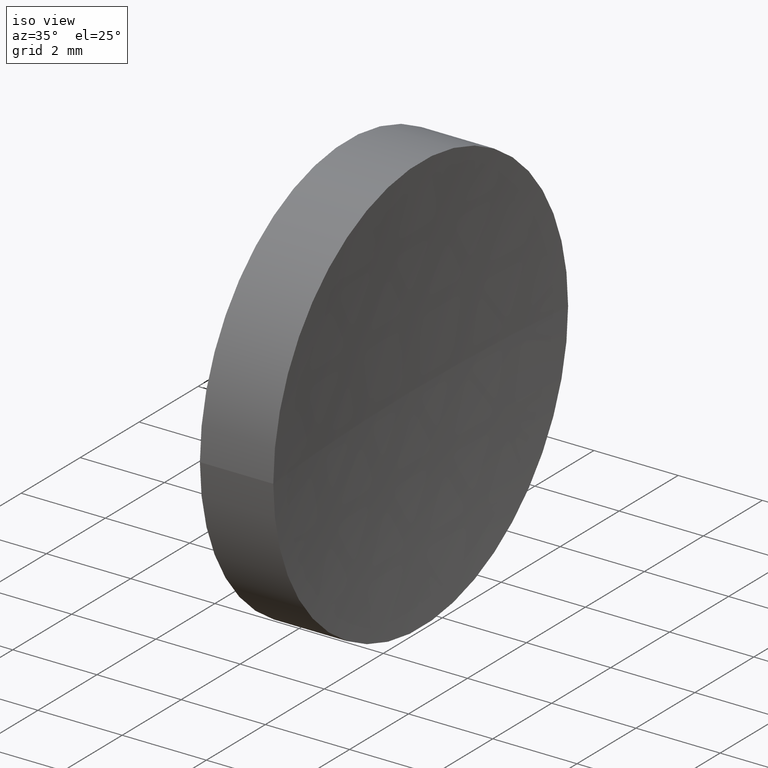
[diagram: clean part render]
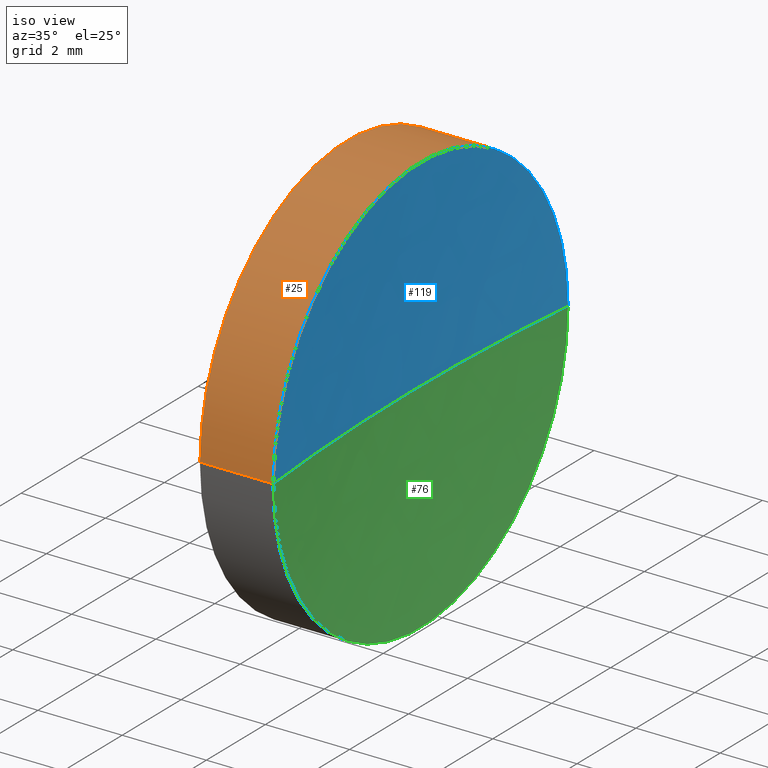
[diagram: same view with three faces highlighted in distinct colors, each labeled with its STEP entity id]
A machine part, iso view with three faces highlighted in distinct colors.
Their STEP definitions:

[orange] entity #25 — the highlighted cylindrical surface (partial cylindrical patch) has radius 5 mm, axis along (-1, 0, -0).
#2 = AXIS2_PLACEMENT_3D ( 'NONE', #113, #81, #151 ) ;
#4 = VERTEX_POINT ( 'NONE', #122 ) ;
#18 = CIRCLE ( 'NONE', #2, 5.000000000000000900 ) ;
#25 = ADVANCED_FACE ( 'NONE', ( #39 ), #41, .T. ) ;
#26 = CARTESIAN_POINT ( 'NONE',  ( 24.16686247112158600, 8.031126091403075800, 0.0000000000000000000 ) ) ;
#28 = DIRECTION ( 'NONE',  ( -1.000000000000000000, 3.159171411554934600E-016, -0.0000000000000000000 ) ) ;
#30 = DIRECTION ( 'NONE',  ( -1.000000000000000000, 3.159171411554934600E-016, -0.0000000000000000000 ) ) ;
#31 = ORIENTED_EDGE ( 'NONE', *, *, #152, .T. ) ;
#33 = DIRECTION ( 'NONE',  ( -1.000000000000000000, 3.159171411554934600E-016, -0.0000000000000000000 ) ) ;
#37 = CARTESIAN_POINT ( 'NONE',  ( 21.50597511808246100, 8.031126091403040200, 0.0000000000000000000 ) ) ;
#39 = FACE_OUTER_BOUND ( 'NONE', #121, .T. ) ;
#41 = CYLINDRICAL_SURFACE ( 'NONE', #71, 5.000000000000000900 ) ;
#44 = LINE ( 'NONE', #112, #142 ) ;
#59 = AXIS2_PLACEMENT_3D ( 'NONE', #96, #28, #164 ) ;
#71 = AXIS2_PLACEMENT_3D ( 'NONE', #108, #33, #131 ) ;
#73 = EDGE_CURVE ( 'NONE', #88, #133, #44, .T. ) ;
#81 = DIRECTION ( 'NONE',  ( -1.000000000000000000, 3.159171411554934600E-016, -0.0000000000000000000 ) ) ;
#88 = VERTEX_POINT ( 'NONE', #139 ) ;
#93 = VECTOR ( 'NONE', #140, 1000.000000000000000 ) ;
#94 = EDGE_CURVE ( 'NONE', #4, #133, #18, .T. ) ;
#96 = CARTESIAN_POINT ( 'NONE',  ( 24.16686247112159000, 13.03112609140304200, 0.0000000000000000000 ) ) ;
#100 = CIRCLE ( 'NONE', #59, 5.000000000000000900 ) ;
#105 = EDGE_CURVE ( 'NONE', #153, #4, #117, .T. ) ;
#108 = CARTESIAN_POINT ( 'NONE',  ( 21.50597511808246100, 13.03112609140304200, 0.0000000000000000000 ) ) ;
#112 = CARTESIAN_POINT ( 'NONE',  ( 21.50597511808246100, 18.03112609140304200, 6.123233995736767300E-016 ) ) ;
#113 = CARTESIAN_POINT ( 'NONE',  ( 22.42423205362066000, 13.03112609140304200, 0.0000000000000000000 ) ) ;
#117 = LINE ( 'NONE', #37, #93 ) ;
#118 = ORIENTED_EDGE ( 'NONE', *, *, #105, .F. ) ;
#121 = EDGE_LOOP ( 'NONE', ( #31, #147, #154, #118 ) ) ;
#122 = CARTESIAN_POINT ( 'NONE',  ( 22.42423205362066000, 8.031126091403040200, 0.0000000000000000000 ) ) ;
#131 = DIRECTION ( 'NONE',  ( 0.0000000000000000000, -1.000000000000000000, 0.0000000000000000000 ) ) ;
#133 = VERTEX_POINT ( 'NONE', #137 ) ;
#137 = CARTESIAN_POINT ( 'NONE',  ( 22.42423205362066000, 18.03112609140304200, 6.123233995736767300E-016 ) ) ;
#139 = CARTESIAN_POINT ( 'NONE',  ( 24.16686247112158600, 18.03112609140301700, 6.123233995736725900E-016 ) ) ;
#140 = DIRECTION ( 'NONE',  ( -1.000000000000000000, 3.159171411554934600E-016, -0.0000000000000000000 ) ) ;
#142 = VECTOR ( 'NONE', #30, 1000.000000000000000 ) ;
#147 = ORIENTED_EDGE ( 'NONE', *, *, #73, .T. ) ;
#151 = DIRECTION ( 'NONE',  ( 0.0000000000000000000, -1.000000000000000000, 0.0000000000000000000 ) ) ;
#152 = EDGE_CURVE ( 'NONE', #153, #88, #100, .T. ) ;
#153 = VERTEX_POINT ( 'NONE', #26 ) ;
#154 = ORIENTED_EDGE ( 'NONE', *, *, #94, .F. ) ;
#164 = DIRECTION ( 'NONE',  ( 0.0000000000000000000, -1.000000000000000000, 0.0000000000000000000 ) ) ;

[blue] entity #119 — the highlighted spherical surface has radius 51.64 mm.
#3 = CIRCLE ( 'NONE', #86, 51.64000000000000800 ) ;
#7 = CIRCLE ( 'NONE', #102, 51.64000000000000800 ) ;
#8 = EDGE_CURVE ( 'NONE', #153, #138, #3, .T. ) ;
#9 = ORIENTED_EDGE ( 'NONE', *, *, #116, .F. ) ;
#11 = DIRECTION ( 'NONE',  ( 0.0000000000000000000, -0.0000000000000000000, -1.000000000000000000 ) ) ;
#26 = CARTESIAN_POINT ( 'NONE',  ( 24.16686247112158600, 8.031126091403075800, 0.0000000000000000000 ) ) ;
#28 = DIRECTION ( 'NONE',  ( -1.000000000000000000, 3.159171411554934600E-016, -0.0000000000000000000 ) ) ;
#47 = DIRECTION ( 'NONE',  ( -3.868869157118576300E-032, -1.224646799147353200E-016, 1.000000000000000000 ) ) ;
#57 = CARTESIAN_POINT ( 'NONE',  ( 75.56423205362065700, 13.03112609140303500, 0.0000000000000000000 ) ) ;
#59 = AXIS2_PLACEMENT_3D ( 'NONE', #96, #28, #164 ) ;
#61 = AXIS2_PLACEMENT_3D ( 'NONE', #57, #150, #98 ) ;
#66 = CARTESIAN_POINT ( 'NONE',  ( 23.92423205362065300, 13.03112609140304900, 0.0000000000000000000 ) ) ;
#74 = CARTESIAN_POINT ( 'NONE',  ( 75.56423205362065700, 13.03112609140303500, 0.0000000000000000000 ) ) ;
#84 = DIRECTION ( 'NONE',  ( 0.0000000000000000000, -1.000000000000000000, -1.224646799147353200E-016 ) ) ;
#86 = AXIS2_PLACEMENT_3D ( 'NONE', #74, #11, #144 ) ;
#88 = VERTEX_POINT ( 'NONE', #139 ) ;
#96 = CARTESIAN_POINT ( 'NONE',  ( 24.16686247112159000, 13.03112609140304200, 0.0000000000000000000 ) ) ;
#98 = DIRECTION ( 'NONE',  ( -2.687410497252992700E-016, -1.000000000000000000, 0.0000000000000000000 ) ) ;
#100 = CIRCLE ( 'NONE', #59, 5.000000000000000900 ) ;
#102 = AXIS2_PLACEMENT_3D ( 'NONE', #128, #47, #84 ) ;
#104 = EDGE_LOOP ( 'NONE', ( #9, #157, #115 ) ) ;
#115 = ORIENTED_EDGE ( 'NONE', *, *, #8, .T. ) ;
#116 = EDGE_CURVE ( 'NONE', #88, #138, #7, .T. ) ;
#119 = ADVANCED_FACE ( 'NONE', ( #130 ), #141, .F. ) ;
#128 = CARTESIAN_POINT ( 'NONE',  ( 75.56423205362065700, 13.03112609140303500, 0.0000000000000000000 ) ) ;
#130 = FACE_OUTER_BOUND ( 'NONE', #104, .T. ) ;
#138 = VERTEX_POINT ( 'NONE', #66 ) ;
#139 = CARTESIAN_POINT ( 'NONE',  ( 24.16686247112158600, 18.03112609140301700, 6.123233995736725900E-016 ) ) ;
#141 = SPHERICAL_SURFACE ( 'NONE', #61, 51.64000000000000800 ) ;
#144 = DIRECTION ( 'NONE',  ( -1.000000000000000000, 0.0000000000000000000, 0.0000000000000000000 ) ) ;
#150 = DIRECTION ( 'NONE',  ( 0.0000000000000000000, 0.0000000000000000000, 1.000000000000000000 ) ) ;
#152 = EDGE_CURVE ( 'NONE', #153, #88, #100, .T. ) ;
#153 = VERTEX_POINT ( 'NONE', #26 ) ;
#157 = ORIENTED_EDGE ( 'NONE', *, *, #152, .F. ) ;
#164 = DIRECTION ( 'NONE',  ( 0.0000000000000000000, -1.000000000000000000, 0.0000000000000000000 ) ) ;

[green] entity #76 — the highlighted spherical surface has radius 51.64 mm.
#3 = CIRCLE ( 'NONE', #86, 51.64000000000000800 ) ;
#7 = CIRCLE ( 'NONE', #102, 51.64000000000000800 ) ;
#8 = EDGE_CURVE ( 'NONE', #153, #138, #3, .T. ) ;
#11 = DIRECTION ( 'NONE',  ( 0.0000000000000000000, -0.0000000000000000000, -1.000000000000000000 ) ) ;
#20 = EDGE_LOOP ( 'NONE', ( #48, #97, #32 ) ) ;
#26 = CARTESIAN_POINT ( 'NONE',  ( 24.16686247112158600, 8.031126091403075800, 0.0000000000000000000 ) ) ;
#32 = ORIENTED_EDGE ( 'NONE', *, *, #8, .F. ) ;
#46 = DIRECTION ( 'NONE',  ( -1.000000000000000000, 3.159171411554934600E-016, -0.0000000000000000000 ) ) ;
#47 = DIRECTION ( 'NONE',  ( -3.868869157118576300E-032, -1.224646799147353200E-016, 1.000000000000000000 ) ) ;
#48 = ORIENTED_EDGE ( 'NONE', *, *, #87, .F. ) ;
#55 = DIRECTION ( 'NONE',  ( -2.687410497252992700E-016, -1.000000000000000000, 0.0000000000000000000 ) ) ;
#66 = CARTESIAN_POINT ( 'NONE',  ( 23.92423205362065300, 13.03112609140304900, 0.0000000000000000000 ) ) ;
#68 = DIRECTION ( 'NONE',  ( 0.0000000000000000000, 0.0000000000000000000, 1.000000000000000000 ) ) ;
#74 = CARTESIAN_POINT ( 'NONE',  ( 75.56423205362065700, 13.03112609140303500, 0.0000000000000000000 ) ) ;
#76 = ADVANCED_FACE ( 'NONE', ( #135 ), #110, .F. ) ;
#84 = DIRECTION ( 'NONE',  ( 0.0000000000000000000, -1.000000000000000000, -1.224646799147353200E-016 ) ) ;
#86 = AXIS2_PLACEMENT_3D ( 'NONE', #74, #11, #144 ) ;
#87 = EDGE_CURVE ( 'NONE', #88, #153, #125, .T. ) ;
#88 = VERTEX_POINT ( 'NONE', #139 ) ;
#89 = AXIS2_PLACEMENT_3D ( 'NONE', #126, #68, #55 ) ;
#97 = ORIENTED_EDGE ( 'NONE', *, *, #116, .T. ) ;
#102 = AXIS2_PLACEMENT_3D ( 'NONE', #128, #47, #84 ) ;
#109 = AXIS2_PLACEMENT_3D ( 'NONE', #165, #46, #124 ) ;
#110 = SPHERICAL_SURFACE ( 'NONE', #89, 51.64000000000000800 ) ;
#116 = EDGE_CURVE ( 'NONE', #88, #138, #7, .T. ) ;
#124 = DIRECTION ( 'NONE',  ( 0.0000000000000000000, -1.000000000000000000, 0.0000000000000000000 ) ) ;
#125 = CIRCLE ( 'NONE', #109, 5.000000000000000900 ) ;
#126 = CARTESIAN_POINT ( 'NONE',  ( 75.56423205362065700, 13.03112609140303500, 0.0000000000000000000 ) ) ;
#128 = CARTESIAN_POINT ( 'NONE',  ( 75.56423205362065700, 13.03112609140303500, 0.0000000000000000000 ) ) ;
#135 = FACE_OUTER_BOUND ( 'NONE', #20, .T. ) ;
#138 = VERTEX_POINT ( 'NONE', #66 ) ;
#139 = CARTESIAN_POINT ( 'NONE',  ( 24.16686247112158600, 18.03112609140301700, 6.123233995736725900E-016 ) ) ;
#144 = DIRECTION ( 'NONE',  ( -1.000000000000000000, 0.0000000000000000000, 0.0000000000000000000 ) ) ;
#153 = VERTEX_POINT ( 'NONE', #26 ) ;
#165 = CARTESIAN_POINT ( 'NONE',  ( 24.16686247112159000, 13.03112609140304200, 0.0000000000000000000 ) ) ;